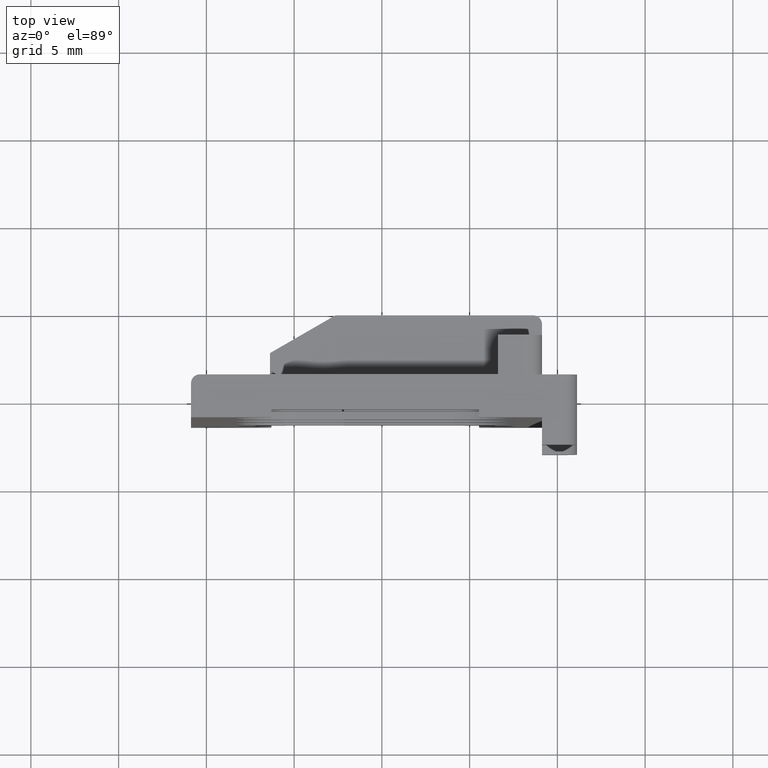
[diagram: clean part render]
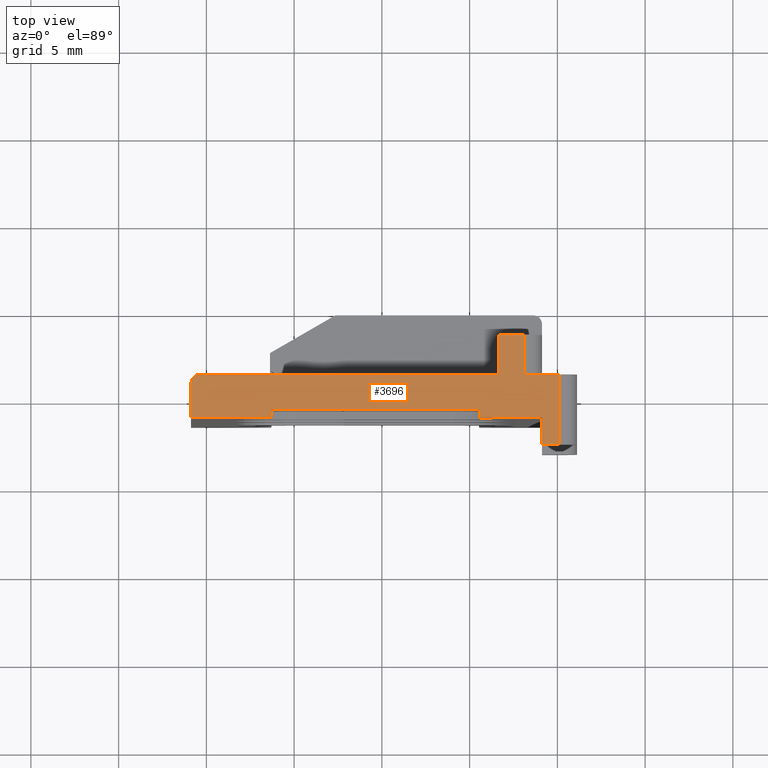
[diagram: same view with one face highlighted and labeled with its STEP entity id]
A machine part, top view. The second image highlights one B-rep face of the part: STEP entity #3696.
In plain terms, the highlighted planar face has unit normal (-0, 0, 1).
Its self-contained STEP definition (entity closure, byte-faithful):
#10 = LINE ( 'NONE', #24, #3206 ) ;
#24 = CARTESIAN_POINT ( 'NONE',  ( 457.5799457489669600, 146.0878730676890000, 35.20000000000000300 ) ) ;
#44 = DIRECTION ( 'NONE',  ( -1.000000000000000000, -0.0000000000000000000, -3.492165866658340700E-015 ) ) ;
#185 = CARTESIAN_POINT ( 'NONE',  ( 457.5799457489669600, 144.0878730676890000, 35.20000000000000300 ) ) ;
#196 = DIRECTION ( 'NONE',  ( 1.000000000000000000, 0.0000000000000000000, 3.492165866658340700E-015 ) ) ;
#199 = PLANE ( 'NONE',  #3249 ) ;
#225 = DIRECTION ( 'NONE',  ( -3.492165866658340700E-015, 2.733577826868160200E-020, 1.000000000000000000 ) ) ;
#230 = FACE_OUTER_BOUND ( 'NONE', #4638, .T. ) ;
#894 = EDGE_CURVE ( 'NONE', #2458, #2436, #4691, .T. ) ;
#896 = EDGE_CURVE ( 'NONE', #2454, #2445, #2746, .T. ) ;
#898 = EDGE_CURVE ( 'NONE', #2450, #2331, #4737, .T. ) ;
#901 = EDGE_CURVE ( 'NONE', #2418, #2376, #4763, .T. ) ;
#907 = EDGE_CURVE ( 'NONE', #2362, #2344, #4756, .T. ) ;
#911 = EDGE_CURVE ( 'NONE', #2362, #2459, #4793, .T. ) ;
#916 = EDGE_CURVE ( 'NONE', #2436, #2454, #4783, .T. ) ;
#920 = EDGE_CURVE ( 'NONE', #2347, #2331, #4786, .T. ) ;
#933 = EDGE_CURVE ( 'NONE', #2344, #2445, #4857, .T. ) ;
#978 = EDGE_CURVE ( 'NONE', #2347, #2434, #4952, .T. ) ;
#1097 = CARTESIAN_POINT ( 'NONE',  ( 444.1252094327941200, 143.6378730676889900, 35.20000000000000300 ) ) ;
#1098 = CARTESIAN_POINT ( 'NONE',  ( 460.5429541206700600, 143.6378730676889900, 35.20000000000001000 ) ) ;
#1120 = CARTESIAN_POINT ( 'NONE',  ( 448.7074647449180100, 143.6378730676889900, 35.19999999999998900 ) ) ;
#1123 = CARTESIAN_POINT ( 'NONE',  ( 464.1252094327940700, 143.6378730676889900, 35.20000000000001000 ) ) ;
#1127 = CARTESIAN_POINT ( 'NONE',  ( 463.1252094327940100, 148.3378730676890000, 35.20000000000001000 ) ) ;
#1157 = CARTESIAN_POINT ( 'NONE',  ( 465.1252094327940100, 146.0878730676890000, 35.20000000000003100 ) ) ;
#1158 = CARTESIAN_POINT ( 'NONE',  ( 461.6252094327940100, 146.0878730676890000, 35.20000000000001000 ) ) ;
#1162 = CARTESIAN_POINT ( 'NONE',  ( 463.1252094327940100, 146.0878730676890000, 35.20000000000002400 ) ) ;
#1211 = CARTESIAN_POINT ( 'NONE',  ( 464.1252094327940700, 142.0878730676890000, 35.20000000000001700 ) ) ;
#1241 = CARTESIAN_POINT ( 'NONE',  ( 444.6252094327940700, 146.0878730676890000, 35.19999999999998200 ) ) ;
#1243 = CARTESIAN_POINT ( 'NONE',  ( 461.6252094327940100, 148.3378730676890000, 35.20000000000001000 ) ) ;
#1244 = CARTESIAN_POINT ( 'NONE',  ( 460.5429541206700600, 144.0878730676890000, 35.20000000000001000 ) ) ;
#1252 = CARTESIAN_POINT ( 'NONE',  ( 465.1252094327940100, 142.0878730676890000, 35.20000000000001700 ) ) ;
#1256 = CARTESIAN_POINT ( 'NONE',  ( 444.1252094327941200, 145.5878730676890000, 35.20000000000000300 ) ) ;
#1265 = CARTESIAN_POINT ( 'NONE',  ( 448.7074647449180100, 144.0878730676890000, 35.19999999999998200 ) ) ;
#1719 = LINE ( 'NONE', #1722, #3095 ) ;
#1722 = CARTESIAN_POINT ( 'NONE',  ( 459.1252094327940100, 148.3378730676890000, 35.20000000000000300 ) ) ;
#1739 = DIRECTION ( 'NONE',  ( -1.000000000000000000, -2.530253133731424900E-033, 6.916643862731900400E-053 ) ) ;
#1741 = DIRECTION ( 'NONE',  ( 1.000000000000000000, 0.0000000000000000000, 3.492165866658340700E-015 ) ) ;
#1762 = CARTESIAN_POINT ( 'NONE',  ( 457.5799457489669600, 144.0878730676890000, 35.20000000000000300 ) ) ;
#1777 = LINE ( 'NONE', #1762, #3081 ) ;
#1800 = DIRECTION ( 'NONE',  ( -1.000000000000000000, -2.530253133731424900E-033, 6.916643862731900400E-053 ) ) ;
#1805 = CARTESIAN_POINT ( 'NONE',  ( 465.1252094327940100, 142.0878730676890000, 35.20000000000000300 ) ) ;
#1809 = LINE ( 'NONE', #1805, #3113 ) ;
#1892 = LINE ( 'NONE', #1894, #3164 ) ;
#1894 = CARTESIAN_POINT ( 'NONE',  ( 465.1252094327940100, 144.0878730676890000, 35.20000000000003100 ) ) ;
#1933 = DIRECTION ( 'NONE',  ( 9.546107180843072800E-035, 1.000000000000000000, -2.733577826868160200E-020 ) ) ;
#2331 = VERTEX_POINT ( 'NONE', #1098 ) ;
#2344 = VERTEX_POINT ( 'NONE', #1097 ) ;
#2347 = VERTEX_POINT ( 'NONE', #1123 ) ;
#2362 = VERTEX_POINT ( 'NONE', #1120 ) ;
#2376 = VERTEX_POINT ( 'NONE', #1127 ) ;
#2418 = VERTEX_POINT ( 'NONE', #1162 ) ;
#2420 = VERTEX_POINT ( 'NONE', #1157 ) ;
#2434 = VERTEX_POINT ( 'NONE', #1211 ) ;
#2436 = VERTEX_POINT ( 'NONE', #1158 ) ;
#2445 = VERTEX_POINT ( 'NONE', #1256 ) ;
#2450 = VERTEX_POINT ( 'NONE', #1244 ) ;
#2453 = VERTEX_POINT ( 'NONE', #1252 ) ;
#2454 = VERTEX_POINT ( 'NONE', #1241 ) ;
#2458 = VERTEX_POINT ( 'NONE', #1243 ) ;
#2459 = VERTEX_POINT ( 'NONE', #1265 ) ;
#2745 = VECTOR ( 'NONE', #4732, 1000.000000000000000 ) ;
#2746 = CIRCLE ( 'NONE', #2748, 0.5000000000000004400 ) ;
#2748 = AXIS2_PLACEMENT_3D ( 'NONE', #4748, #4764, #4733 ) ;
#2750 = VECTOR ( 'NONE', #4740, 1000.000000000000000 ) ;
#2755 = VECTOR ( 'NONE', #4805, 1000.000000000000000 ) ;
#2768 = VECTOR ( 'NONE', #4858, 1000.000000000000000 ) ;
#2785 = VECTOR ( 'NONE', #4762, 1000.000000000000000 ) ;
#2786 = VECTOR ( 'NONE', #4802, 1000.000000000000000 ) ;
#2793 = VECTOR ( 'NONE', #4778, 1000.000000000000000 ) ;
#2795 = VECTOR ( 'NONE', #4800, 1000.000000000000000 ) ;
#2809 = VECTOR ( 'NONE', #4977, 1000.000000000000000 ) ;
#3081 = VECTOR ( 'NONE', #1741, 1000.000000000000000 ) ;
#3095 = VECTOR ( 'NONE', #1739, 1000.000000000000000 ) ;
#3113 = VECTOR ( 'NONE', #1800, 1000.000000000000000 ) ;
#3164 = VECTOR ( 'NONE', #1933, 1000.000000000000000 ) ;
#3206 = VECTOR ( 'NONE', #44, 1000.000000000000000 ) ;
#3249 = AXIS2_PLACEMENT_3D ( 'NONE', #185, #225, #196 ) ;
#3560 = EDGE_CURVE ( 'NONE', #2376, #2458, #1719, .T. ) ;
#3565 = EDGE_CURVE ( 'NONE', #2459, #2450, #1777, .T. ) ;
#3577 = EDGE_CURVE ( 'NONE', #2453, #2434, #1809, .T. ) ;
#3612 = EDGE_CURVE ( 'NONE', #2453, #2420, #1892, .T. ) ;
#3652 = EDGE_CURVE ( 'NONE', #2420, #2418, #10, .T. ) ;
#3696 = ADVANCED_FACE ( 'NONE', ( #230 ), #199, .T. ) ;
#4255 = ORIENTED_EDGE ( 'NONE', *, *, #911, .T. ) ;
#4262 = ORIENTED_EDGE ( 'NONE', *, *, #3612, .T. ) ;
#4264 = ORIENTED_EDGE ( 'NONE', *, *, #901, .T. ) ;
#4269 = ORIENTED_EDGE ( 'NONE', *, *, #3652, .T. ) ;
#4270 = ORIENTED_EDGE ( 'NONE', *, *, #894, .T. ) ;
#4278 = ORIENTED_EDGE ( 'NONE', *, *, #907, .F. ) ;
#4279 = ORIENTED_EDGE ( 'NONE', *, *, #896, .T. ) ;
#4287 = ORIENTED_EDGE ( 'NONE', *, *, #933, .F. ) ;
#4288 = ORIENTED_EDGE ( 'NONE', *, *, #898, .T. ) ;
#4295 = ORIENTED_EDGE ( 'NONE', *, *, #978, .T. ) ;
#4299 = ORIENTED_EDGE ( 'NONE', *, *, #3577, .F. ) ;
#4301 = ORIENTED_EDGE ( 'NONE', *, *, #916, .T. ) ;
#4305 = ORIENTED_EDGE ( 'NONE', *, *, #3565, .T. ) ;
#4306 = ORIENTED_EDGE ( 'NONE', *, *, #3560, .T. ) ;
#4310 = ORIENTED_EDGE ( 'NONE', *, *, #920, .F. ) ;
#4638 = EDGE_LOOP ( 'NONE', ( #4301, #4279, #4287, #4278, #4255, #4305, #4288, #4310, #4295, #4299, #4262, #4269, #4264, #4306, #4270 ) ) ;
#4691 = LINE ( 'NONE', #4767, #2745 ) ;
#4732 = DIRECTION ( 'NONE',  ( -9.546107180843072800E-035, -1.000000000000000000, 2.733577826868160200E-020 ) ) ;
#4733 = DIRECTION ( 'NONE',  ( -1.000000000000000000, 0.0000000000000000000, 0.0000000000000000000 ) ) ;
#4737 = LINE ( 'NONE', #4759, #2785 ) ;
#4740 = DIRECTION ( 'NONE',  ( 9.546107180843072800E-035, 1.000000000000000000, -2.733577826868160200E-020 ) ) ;
#4748 = CARTESIAN_POINT ( 'NONE',  ( 444.6252094327940100, 145.5878730676890000, 35.20000000000000300 ) ) ;
#4753 = CARTESIAN_POINT ( 'NONE',  ( 463.1252094327940100, 144.0878730676890000, 35.20000000000002400 ) ) ;
#4756 = LINE ( 'NONE', #4757, #2795 ) ;
#4757 = CARTESIAN_POINT ( 'NONE',  ( 464.8752094327940100, 143.6378730676889900, 35.20000000000000300 ) ) ;
#4759 = CARTESIAN_POINT ( 'NONE',  ( 460.5429541206700600, 144.0878730676890000, 35.20000000000001000 ) ) ;
#4762 = DIRECTION ( 'NONE',  ( -9.546107180843072800E-035, -1.000000000000000000, 2.733577826868160200E-020 ) ) ;
#4763 = LINE ( 'NONE', #4753, #2750 ) ;
#4764 = DIRECTION ( 'NONE',  ( -3.492165866658340300E-015, 2.733577826868160200E-020, 1.000000000000000000 ) ) ;
#4767 = CARTESIAN_POINT ( 'NONE',  ( 461.6252094327940100, 144.0878730676890000, 35.20000000000001700 ) ) ;
#4769 = CARTESIAN_POINT ( 'NONE',  ( 464.8752094327940100, 143.6378730676889900, 35.20000000000000300 ) ) ;
#4773 = CARTESIAN_POINT ( 'NONE',  ( 448.7074647449180100, 144.0878730676890000, 35.19999999999997400 ) ) ;
#4778 = DIRECTION ( 'NONE',  ( -1.000000000000000000, -0.0000000000000000000, -3.492165866658340700E-015 ) ) ;
#4783 = LINE ( 'NONE', #4803, #2793 ) ;
#4786 = LINE ( 'NONE', #4769, #2755 ) ;
#4793 = LINE ( 'NONE', #4773, #2786 ) ;
#4800 = DIRECTION ( 'NONE',  ( -1.000000000000000000, -2.530253133731424900E-033, 6.916643862731900400E-053 ) ) ;
#4802 = DIRECTION ( 'NONE',  ( 9.546107180843072800E-035, 1.000000000000000000, -2.733577826868160200E-020 ) ) ;
#4803 = CARTESIAN_POINT ( 'NONE',  ( 457.5799457489669600, 146.0878730676890000, 35.20000000000000300 ) ) ;
#4805 = DIRECTION ( 'NONE',  ( -1.000000000000000000, -2.530253133731424900E-033, 6.916643862731900400E-053 ) ) ;
#4838 = CARTESIAN_POINT ( 'NONE',  ( 444.1252094327941200, 144.0878730676890000, 35.20000000000000300 ) ) ;
#4857 = LINE ( 'NONE', #4838, #2768 ) ;
#4858 = DIRECTION ( 'NONE',  ( -2.625714205539857000E-033, 1.000000000000000000, -9.169429524186343400E-048 ) ) ;
#4952 = LINE ( 'NONE', #4989, #2809 ) ;
#4977 = DIRECTION ( 'NONE',  ( -9.546107180843072800E-035, -1.000000000000000000, 2.733577826868160200E-020 ) ) ;
#4989 = CARTESIAN_POINT ( 'NONE',  ( 464.1252094327940100, 144.0878730676890000, 35.20000000000002400 ) ) ;